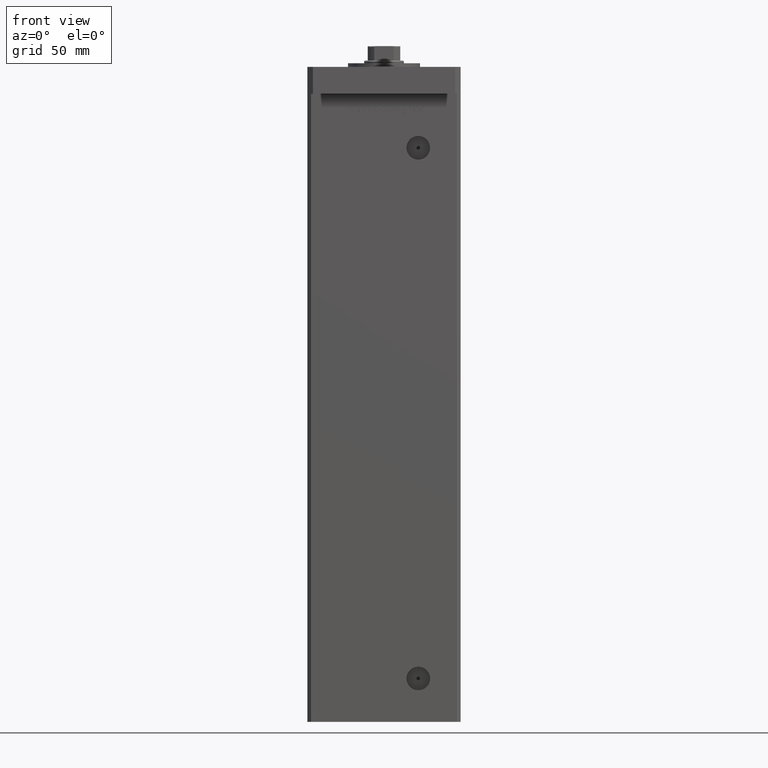
[diagram: clean part render]
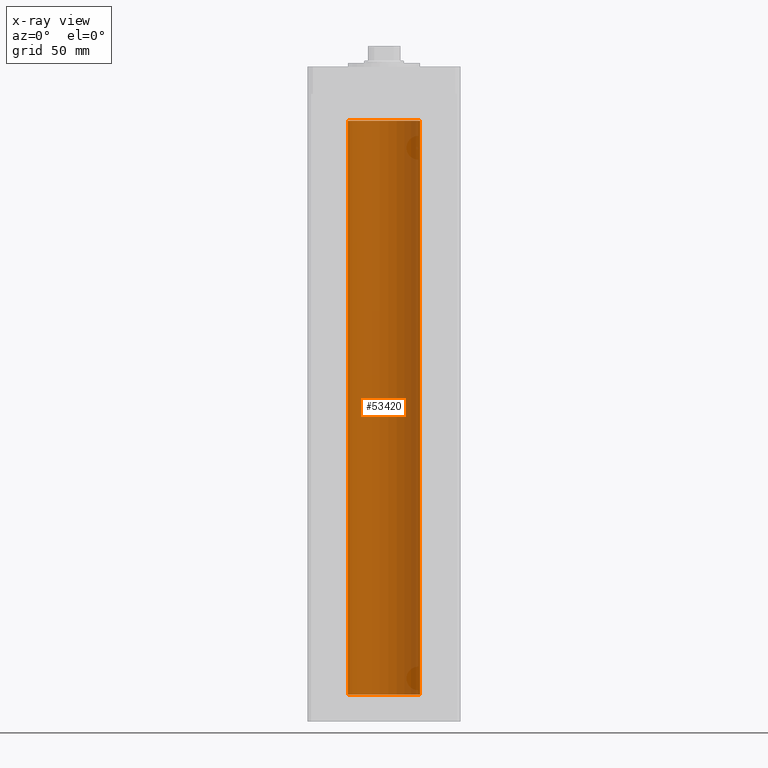
[diagram: x-ray — body ghosted, one internal face saturated and labeled with its STEP entity id]
A machine part, front view, then the same camera in x-ray: the body is ghosted and one INTERNAL B-rep face — a face not visible from any outside direction — is saturated and labeled: STEP entity #53420.
In plain terms, the highlighted cylindrical surface (edge-blend (fillet) strip) has radius 20 mm, axis along (-0, -0, -1).
Its self-contained STEP definition (entity closure, byte-faithful):
#1353 = CARTESIAN_POINT ( 'NONE',  ( 0.000000000000000000, 0.000000000000000000, 0.000000000000000000 ) ) ;
#1898 = VECTOR ( 'NONE', #37960, 1000.000000000000000 ) ;
#2754 = CARTESIAN_POINT ( 'NONE',  ( -20.00000000000000000, 0.000000000000000000, 318.5000000000000000 ) ) ;
#3715 = VERTEX_POINT ( 'NONE', #28768 ) ;
#3960 = VERTEX_POINT ( 'NONE', #20843 ) ;
#4424 = DIRECTION ( 'NONE',  ( -0.000000000000000000, -0.000000000000000000, -1.000000000000000000 ) ) ;
#5938 = CARTESIAN_POINT ( 'NONE',  ( 20.00000000000000000, 2.449293598294706513E-15, 318.5000000000000000 ) ) ;
#9152 = ORIENTED_EDGE ( 'NONE', *, *, #29091, .T. ) ;
#10500 = EDGE_CURVE ( 'NONE', #31136, #3960, #48691, .T. ) ;
#10517 = EDGE_CURVE ( 'NONE', #28568, #3960, #34682, .T. ) ;
#14341 = LINE ( 'NONE', #5938, #17801 ) ;
#14519 = ORIENTED_EDGE ( 'NONE', *, *, #10517, .T. ) ;
#15005 = EDGE_LOOP ( 'NONE', ( #41650, #9152, #14519, #36057 ) ) ;
#17079 = DIRECTION ( 'NONE',  ( -0.000000000000000000, 0.000000000000000000, 1.000000000000000000 ) ) ;
#17429 = CYLINDRICAL_SURFACE ( 'NONE', #51632, 20.00000000000000000 ) ;
#17801 = VECTOR ( 'NONE', #26552, 1000.000000000000000 ) ;
#20843 = CARTESIAN_POINT ( 'NONE',  ( -20.00000000000000000, 0.000000000000000000, 0.000000000000000000 ) ) ;
#23758 = CARTESIAN_POINT ( 'NONE',  ( 20.00000000000000000, 2.449293598294706513E-15, 0.000000000000000000 ) ) ;
#25032 = FACE_OUTER_BOUND ( 'NONE', #15005, .T. ) ;
#25135 = DIRECTION ( 'NONE',  ( 1.000000000000000000, 0.000000000000000000, 0.000000000000000000 ) ) ;
#25264 = AXIS2_PLACEMENT_3D ( 'NONE', #1353, #17079, #30609 ) ;
#26552 = DIRECTION ( 'NONE',  ( -0.000000000000000000, -0.000000000000000000, -1.000000000000000000 ) ) ;
#26620 = CIRCLE ( 'NONE', #43936, 20.00000000000000000 ) ;
#28568 = VERTEX_POINT ( 'NONE', #2754 ) ;
#28768 = CARTESIAN_POINT ( 'NONE',  ( 20.00000000000000000, 2.449293598294706513E-15, 318.5000000000000000 ) ) ;
#29091 = EDGE_CURVE ( 'NONE', #3715, #28568, #26620, .T. ) ;
#30169 = DIRECTION ( 'NONE',  ( -1.000000000000000000, 0.000000000000000000, 0.000000000000000000 ) ) ;
#30609 = DIRECTION ( 'NONE',  ( 1.000000000000000000, 0.000000000000000000, 0.000000000000000000 ) ) ;
#31136 = VERTEX_POINT ( 'NONE', #23758 ) ;
#33255 = DIRECTION ( 'NONE',  ( -0.000000000000000000, 0.000000000000000000, 1.000000000000000000 ) ) ;
#34682 = LINE ( 'NONE', #37693, #1898 ) ;
#36057 = ORIENTED_EDGE ( 'NONE', *, *, #10500, .F. ) ;
#37693 = CARTESIAN_POINT ( 'NONE',  ( -20.00000000000000000, 0.000000000000000000, 318.5000000000000000 ) ) ;
#37960 = DIRECTION ( 'NONE',  ( -0.000000000000000000, -0.000000000000000000, -1.000000000000000000 ) ) ;
#41421 = CARTESIAN_POINT ( 'NONE',  ( 0.000000000000000000, 0.000000000000000000, 318.5000000000000000 ) ) ;
#41650 = ORIENTED_EDGE ( 'NONE', *, *, #51704, .F. ) ;
#42660 = CARTESIAN_POINT ( 'NONE',  ( 0.000000000000000000, 0.000000000000000000, 318.5000000000000000 ) ) ;
#43936 = AXIS2_PLACEMENT_3D ( 'NONE', #41421, #33255, #25135 ) ;
#48691 = CIRCLE ( 'NONE', #25264, 20.00000000000000000 ) ;
#51632 = AXIS2_PLACEMENT_3D ( 'NONE', #42660, #4424, #30169 ) ;
#51704 = EDGE_CURVE ( 'NONE', #3715, #31136, #14341, .T. ) ;
#53420 = ADVANCED_FACE ( 'NONE', ( #25032 ), #17429, .F. ) ;